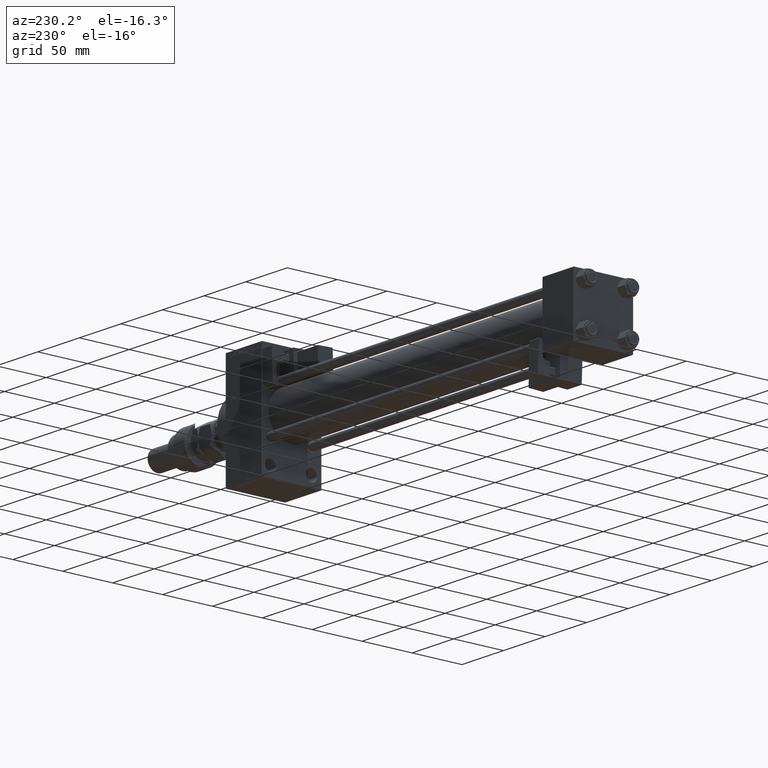
[diagram: clean part render]
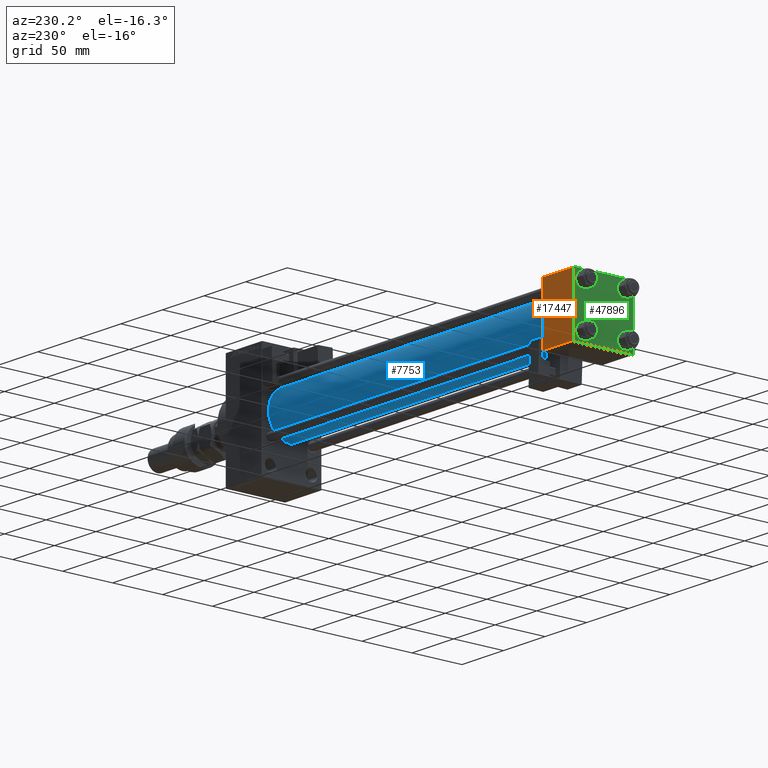
[diagram: same view with three faces highlighted in distinct colors, each labeled with its STEP entity id]
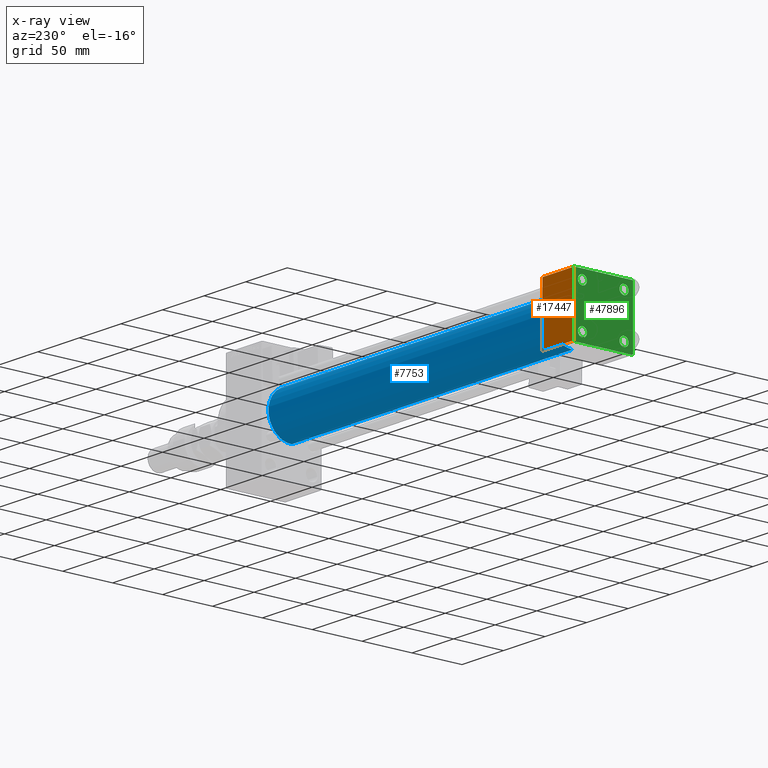
[diagram: x-ray of the same camera — body ghosted, the three highlighted faces saturated]
A machine part, auxiliary view with three faces highlighted in distinct colors.
The next image is the same camera in x-ray (body ghosted, the three faces saturated) — at least one of them is partly hidden behind the body in this view.
Their STEP definitions:

[orange] entity #17447 — the highlighted planar face has unit normal (0, 1, 0).
#1815 = DIRECTION ( 'NONE',  ( -1.000000000000000000, 0.000000000000000000, 0.000000000000000000 ) ) ;
#3280 = EDGE_CURVE ( 'NONE', #49891, #51180, #23770, .T. ) ;
#3715 = CARTESIAN_POINT ( 'NONE',  ( 37.00000000000000000, 29.99999999999999289, 30.00000000000000000 ) ) ;
#5031 = LINE ( 'NONE', #46462, #19819 ) ;
#7054 = CARTESIAN_POINT ( 'NONE',  ( 37.00000000000000000, 29.99999999999999289, -29.50000000000000000 ) ) ;
#11153 = DIRECTION ( 'NONE',  ( -0.000000000000000000, 1.000000000000000000, 0.000000000000000000 ) ) ;
#11425 = ORIENTED_EDGE ( 'NONE', *, *, #3280, .T. ) ;
#12215 = AXIS2_PLACEMENT_3D ( 'NONE', #3715, #11153, #44110 ) ;
#13327 = VERTEX_POINT ( 'NONE', #7054 ) ;
#15784 = CARTESIAN_POINT ( 'NONE',  ( 37.00000000000000000, 29.99999999999999289, 29.50000000000000000 ) ) ;
#17447 = ADVANCED_FACE ( 'NONE', ( #50767 ), #47297, .T. ) ;
#17725 = EDGE_CURVE ( 'NONE', #51180, #13327, #5031, .T. ) ;
#19819 = VECTOR ( 'NONE', #37433, 1000.000000000000000 ) ;
#23732 = VECTOR ( 'NONE', #32566, 1000.000000000000000 ) ;
#23770 = LINE ( 'NONE', #15784, #33833 ) ;
#28589 = ORIENTED_EDGE ( 'NONE', *, *, #45771, .F. ) ;
#28854 = CARTESIAN_POINT ( 'NONE',  ( 0.000000000000000000, 29.99999999999999289, 30.00000000000000000 ) ) ;
#31266 = CARTESIAN_POINT ( 'NONE',  ( 37.00000000000000000, 29.99999999999999289, -29.50000000000000000 ) ) ;
#32096 = EDGE_LOOP ( 'NONE', ( #50029, #44716, #28589, #11425 ) ) ;
#32566 = DIRECTION ( 'NONE',  ( 0.000000000000000000, 0.000000000000000000, -1.000000000000000000 ) ) ;
#33778 = EDGE_CURVE ( 'NONE', #13327, #45469, #51219, .T. ) ;
#33833 = VECTOR ( 'NONE', #47444, 1000.000000000000000 ) ;
#36258 = CARTESIAN_POINT ( 'NONE',  ( 0.000000000000000000, 29.99999999999999289, -29.50000000000000000 ) ) ;
#36365 = CARTESIAN_POINT ( 'NONE',  ( 0.000000000000000000, 29.99999999999999289, 29.50000000000000000 ) ) ;
#37433 = DIRECTION ( 'NONE',  ( 0.000000000000000000, 0.000000000000000000, -1.000000000000000000 ) ) ;
#44110 = DIRECTION ( 'NONE',  ( 0.000000000000000000, -0.000000000000000000, 1.000000000000000000 ) ) ;
#44716 = ORIENTED_EDGE ( 'NONE', *, *, #33778, .T. ) ;
#45469 = VERTEX_POINT ( 'NONE', #36258 ) ;
#45771 = EDGE_CURVE ( 'NONE', #49891, #45469, #48543, .T. ) ;
#46462 = CARTESIAN_POINT ( 'NONE',  ( 37.00000000000000000, 29.99999999999999289, 30.00000000000000000 ) ) ;
#47297 = PLANE ( 'NONE',  #12215 ) ;
#47444 = DIRECTION ( 'NONE',  ( 1.000000000000000000, 0.000000000000000000, 0.000000000000000000 ) ) ;
#48543 = LINE ( 'NONE', #28854, #23732 ) ;
#49891 = VERTEX_POINT ( 'NONE', #36365 ) ;
#50029 = ORIENTED_EDGE ( 'NONE', *, *, #17725, .T. ) ;
#50767 = FACE_OUTER_BOUND ( 'NONE', #32096, .T. ) ;
#51180 = VERTEX_POINT ( 'NONE', #51999 ) ;
#51219 = LINE ( 'NONE', #31266, #51770 ) ;
#51770 = VECTOR ( 'NONE', #1815, 1000.000000000000000 ) ;
#51999 = CARTESIAN_POINT ( 'NONE',  ( 37.00000000000000000, 29.99999999999999289, 29.50000000000000000 ) ) ;

[blue] entity #7753 — the highlighted cylindrical surface (edge-blend (fillet) strip) has radius 23 mm, axis along (-1, -0, -0).
#1258 = EDGE_CURVE ( 'NONE', #6333, #41746, #26091, .T. ) ;
#1429 = DIRECTION ( 'NONE',  ( -1.000000000000000000, -0.000000000000000000, -0.000000000000000000 ) ) ;
#3527 = EDGE_CURVE ( 'NONE', #10437, #6333, #25605, .T. ) ;
#4257 = CARTESIAN_POINT ( 'NONE',  ( 375.0000000000000000, -2.602085213965210642E-15, 23.00000000000000000 ) ) ;
#5091 = VERTEX_POINT ( 'NONE', #4257 ) ;
#5419 = LINE ( 'NONE', #6193, #39553 ) ;
#6193 = CARTESIAN_POINT ( 'NONE',  ( 375.0000000000000000, -2.602085213965210642E-15, 23.00000000000000000 ) ) ;
#6333 = VERTEX_POINT ( 'NONE', #44866 ) ;
#7753 = ADVANCED_FACE ( 'NONE', ( #15524 ), #52211, .T. ) ;
#8648 = EDGE_CURVE ( 'NONE', #10437, #5091, #42415, .T. ) ;
#10437 = VERTEX_POINT ( 'NONE', #39761 ) ;
#11868 = DIRECTION ( 'NONE',  ( 0.000000000000000000, 0.000000000000000000, 1.000000000000000000 ) ) ;
#12827 = DIRECTION ( 'NONE',  ( 1.000000000000000000, 0.000000000000000000, 0.000000000000000000 ) ) ;
#14349 = ORIENTED_EDGE ( 'NONE', *, *, #36117, .F. ) ;
#15524 = FACE_OUTER_BOUND ( 'NONE', #26662, .T. ) ;
#15831 = DIRECTION ( 'NONE',  ( 1.000000000000000000, -0.000000000000000000, 0.000000000000000000 ) ) ;
#17596 = ORIENTED_EDGE ( 'NONE', *, *, #3527, .T. ) ;
#17817 = AXIS2_PLACEMENT_3D ( 'NONE', #48719, #12827, #24776 ) ;
#20297 = DIRECTION ( 'NONE',  ( -1.000000000000000000, -0.000000000000000000, -0.000000000000000000 ) ) ;
#20989 = AXIS2_PLACEMENT_3D ( 'NONE', #36042, #15831, #11868 ) ;
#24776 = DIRECTION ( 'NONE',  ( 0.000000000000000000, 0.000000000000000000, -1.000000000000000000 ) ) ;
#25605 = LINE ( 'NONE', #41822, #34652 ) ;
#26091 = CIRCLE ( 'NONE', #20989, 23.00000000000000000 ) ;
#26662 = EDGE_LOOP ( 'NONE', ( #27742, #17596, #37896, #14349 ) ) ;
#27742 = ORIENTED_EDGE ( 'NONE', *, *, #8648, .F. ) ;
#27757 = DIRECTION ( 'NONE',  ( 0.000000000000000000, 0.000000000000000000, 1.000000000000000000 ) ) ;
#31351 = AXIS2_PLACEMENT_3D ( 'NONE', #31735, #20297, #27757 ) ;
#31735 = CARTESIAN_POINT ( 'NONE',  ( 375.0000000000000000, -2.602085213965210642E-15, 0.000000000000000000 ) ) ;
#34652 = VECTOR ( 'NONE', #1429, 1000.000000000000000 ) ;
#36042 = CARTESIAN_POINT ( 'NONE',  ( 36.99999999999997868, -2.602085213965210642E-15, 0.000000000000000000 ) ) ;
#36117 = EDGE_CURVE ( 'NONE', #5091, #41746, #5419, .T. ) ;
#37555 = DIRECTION ( 'NONE',  ( -1.000000000000000000, -0.000000000000000000, -0.000000000000000000 ) ) ;
#37896 = ORIENTED_EDGE ( 'NONE', *, *, #1258, .T. ) ;
#39553 = VECTOR ( 'NONE', #37555, 1000.000000000000000 ) ;
#39761 = CARTESIAN_POINT ( 'NONE',  ( 375.0000000000000000, 2.146024240737016609E-16, -23.00000000000000000 ) ) ;
#41746 = VERTEX_POINT ( 'NONE', #52169 ) ;
#41822 = CARTESIAN_POINT ( 'NONE',  ( 375.0000000000000000, 2.146024240737016609E-16, -23.00000000000000000 ) ) ;
#42415 = CIRCLE ( 'NONE', #17817, 23.00000000000000000 ) ;
#44866 = CARTESIAN_POINT ( 'NONE',  ( 36.99999999999997868, 2.146024240737016609E-16, -23.00000000000000000 ) ) ;
#48719 = CARTESIAN_POINT ( 'NONE',  ( 375.0000000000000000, -2.602085213965210642E-15, 0.000000000000000000 ) ) ;
#52169 = CARTESIAN_POINT ( 'NONE',  ( 36.99999999999997868, -2.602085213965210642E-15, 23.00000000000000000 ) ) ;
#52211 = CYLINDRICAL_SURFACE ( 'NONE', #31351, 23.00000000000000000 ) ;

[green] entity #47896 — the highlighted planar face has unit normal (-1, 0, 0).
#418 = DIRECTION ( 'NONE',  ( 1.000000000000000000, -0.000000000000000000, 0.000000000000000000 ) ) ;
#561 = CARTESIAN_POINT ( 'NONE',  ( 0.000000000000000000, 20.84999999999999787, 20.85000000000000142 ) ) ;
#636 = VERTEX_POINT ( 'NONE', #2762 ) ;
#946 = AXIS2_PLACEMENT_3D ( 'NONE', #40151, #20459, #3751 ) ;
#1863 = EDGE_CURVE ( 'NONE', #9135, #15608, #46480, .T. ) ;
#2193 = DIRECTION ( 'NONE',  ( 0.000000000000000000, 0.000000000000000000, 1.000000000000000000 ) ) ;
#2205 = CARTESIAN_POINT ( 'NONE',  ( 0.000000000000000000, 29.49999999999997868, -30.00000000000000000 ) ) ;
#2606 = LINE ( 'NONE', #47789, #23509 ) ;
#2617 = EDGE_CURVE ( 'NONE', #9074, #45902, #24448, .T. ) ;
#2762 = CARTESIAN_POINT ( 'NONE',  ( 0.000000000000000000, 29.49999999999999289, 30.00000000000000000 ) ) ;
#3401 = ORIENTED_EDGE ( 'NONE', *, *, #1863, .T. ) ;
#3751 = DIRECTION ( 'NONE',  ( 0.000000000000000000, 0.000000000000000000, 1.000000000000000000 ) ) ;
#4029 = AXIS2_PLACEMENT_3D ( 'NONE', #50655, #46674, #50918 ) ;
#5062 = DIRECTION ( 'NONE',  ( 1.000000000000000000, -0.000000000000000000, 0.000000000000000000 ) ) ;
#5161 = DIRECTION ( 'NONE',  ( 1.000000000000000000, -0.000000000000000000, 0.000000000000000000 ) ) ;
#5444 = VERTEX_POINT ( 'NONE', #50154 ) ;
#6290 = ORIENTED_EDGE ( 'NONE', *, *, #27703, .F. ) ;
#6493 = AXIS2_PLACEMENT_3D ( 'NONE', #28377, #44845, #8465 ) ;
#6819 = ORIENTED_EDGE ( 'NONE', *, *, #37660, .T. ) ;
#6904 = CIRCLE ( 'NONE', #946, 4.500000000000017764 ) ;
#7119 = DIRECTION ( 'NONE',  ( 0.000000000000000000, 0.7071067811865474617, -0.7071067811865474617 ) ) ;
#7330 = ORIENTED_EDGE ( 'NONE', *, *, #7465, .T. ) ;
#7465 = EDGE_CURVE ( 'NONE', #25760, #10061, #47228, .T. ) ;
#8333 = ORIENTED_EDGE ( 'NONE', *, *, #17304, .T. ) ;
#8465 = DIRECTION ( 'NONE',  ( 0.000000000000000000, 0.000000000000000000, 1.000000000000000000 ) ) ;
#9074 = VERTEX_POINT ( 'NONE', #9591 ) ;
#9135 = VERTEX_POINT ( 'NONE', #39474 ) ;
#9591 = CARTESIAN_POINT ( 'NONE',  ( 0.000000000000000000, -20.84999999999999076, 16.34999999999998721 ) ) ;
#10061 = VERTEX_POINT ( 'NONE', #43811 ) ;
#10717 = EDGE_CURVE ( 'NONE', #48157, #38126, #12073, .T. ) ;
#11070 = VECTOR ( 'NONE', #14408, 1000.000000000000114 ) ;
#11080 = LINE ( 'NONE', #39771, #50744 ) ;
#11235 = AXIS2_PLACEMENT_3D ( 'NONE', #20601, #418, #30085 ) ;
#11616 = FACE_BOUND ( 'NONE', #26525, .T. ) ;
#12073 = CIRCLE ( 'NONE', #11235, 4.500000000000017764 ) ;
#12999 = ORIENTED_EDGE ( 'NONE', *, *, #20776, .T. ) ;
#13514 = CARTESIAN_POINT ( 'NONE',  ( 0.000000000000000000, 20.84999999999999787, 25.35000000000001918 ) ) ;
#13642 = CARTESIAN_POINT ( 'NONE',  ( 0.000000000000000000, -20.84999999999999076, 20.85000000000000497 ) ) ;
#13717 = CARTESIAN_POINT ( 'NONE',  ( 0.000000000000000000, 20.84999999999999787, -25.35000000000001918 ) ) ;
#14117 = VECTOR ( 'NONE', #34645, 1000.000000000000000 ) ;
#14276 = DIRECTION ( 'NONE',  ( -0.000000000000000000, 0.7071067811865474617, 0.7071067811865474617 ) ) ;
#14408 = DIRECTION ( 'NONE',  ( 0.000000000000000000, -0.7071067811865474617, 0.7071067811865474617 ) ) ;
#15105 = ORIENTED_EDGE ( 'NONE', *, *, #40341, .T. ) ;
#15608 = VERTEX_POINT ( 'NONE', #25657 ) ;
#15965 = ORIENTED_EDGE ( 'NONE', *, *, #45771, .T. ) ;
#16127 = CARTESIAN_POINT ( 'NONE',  ( 0.000000000000000000, 0.000000000000000000, 0.000000000000000000 ) ) ;
#16366 = VERTEX_POINT ( 'NONE', #13514 ) ;
#17022 = AXIS2_PLACEMENT_3D ( 'NONE', #16127, #27824, #48303 ) ;
#17304 = EDGE_CURVE ( 'NONE', #16366, #5444, #30038, .T. ) ;
#18167 = LINE ( 'NONE', #25639, #14117 ) ;
#19041 = VERTEX_POINT ( 'NONE', #19511 ) ;
#19511 = CARTESIAN_POINT ( 'NONE',  ( 0.000000000000000000, -30.00000000000000000, -29.50000000000001776 ) ) ;
#19568 = FACE_BOUND ( 'NONE', #28949, .T. ) ;
#20452 = CARTESIAN_POINT ( 'NONE',  ( 0.000000000000000000, -20.84999999999999076, -20.85000000000000497 ) ) ;
#20459 = DIRECTION ( 'NONE',  ( 1.000000000000000000, -0.000000000000000000, 0.000000000000000000 ) ) ;
#20601 = CARTESIAN_POINT ( 'NONE',  ( 0.000000000000000000, 20.84999999999999787, -20.85000000000000142 ) ) ;
#20708 = DIRECTION ( 'NONE',  ( 0.000000000000000000, 0.000000000000000000, 1.000000000000000000 ) ) ;
#20776 = EDGE_CURVE ( 'NONE', #30730, #41832, #26666, .T. ) ;
#20830 = CARTESIAN_POINT ( 'NONE',  ( 0.000000000000000000, 29.99999999999999289, 30.00000000000000000 ) ) ;
#21623 = LINE ( 'NONE', #20830, #36260 ) ;
#21913 = AXIS2_PLACEMENT_3D ( 'NONE', #13642, #5161, #2193 ) ;
#22430 = ORIENTED_EDGE ( 'NONE', *, *, #38735, .T. ) ;
#22625 = DIRECTION ( 'NONE',  ( 0.000000000000000000, 0.000000000000000000, 1.000000000000000000 ) ) ;
#23509 = VECTOR ( 'NONE', #46743, 999.9999999999998863 ) ;
#23732 = VECTOR ( 'NONE', #32566, 1000.000000000000000 ) ;
#23828 = ORIENTED_EDGE ( 'NONE', *, *, #2617, .T. ) ;
#23833 = FACE_BOUND ( 'NONE', #40437, .T. ) ;
#24448 = CIRCLE ( 'NONE', #21913, 4.500000000000017764 ) ;
#24714 = AXIS2_PLACEMENT_3D ( 'NONE', #20452, #5062, #20708 ) ;
#24737 = DIRECTION ( 'NONE',  ( 1.000000000000000000, -0.000000000000000000, 0.000000000000000000 ) ) ;
#25155 = ORIENTED_EDGE ( 'NONE', *, *, #48726, .T. ) ;
#25639 = CARTESIAN_POINT ( 'NONE',  ( 0.000000000000000000, -30.00000000000000000, 29.99999999999999289 ) ) ;
#25657 = CARTESIAN_POINT ( 'NONE',  ( 0.000000000000000000, -20.84999999999999076, -16.34999999999998721 ) ) ;
#25760 = VERTEX_POINT ( 'NONE', #42363 ) ;
#26525 = EDGE_LOOP ( 'NONE', ( #25155, #3401 ) ) ;
#26666 = LINE ( 'NONE', #46115, #27607 ) ;
#26800 = CIRCLE ( 'NONE', #6493, 4.500000000000017764 ) ;
#27279 = ORIENTED_EDGE ( 'NONE', *, *, #10717, .T. ) ;
#27607 = VECTOR ( 'NONE', #33872, 1000.000000000000000 ) ;
#27703 = EDGE_CURVE ( 'NONE', #25760, #19041, #18167, .T. ) ;
#27824 = DIRECTION ( 'NONE',  ( -1.000000000000000000, 0.000000000000000000, -0.000000000000000000 ) ) ;
#28170 = EDGE_CURVE ( 'NONE', #636, #10061, #21623, .T. ) ;
#28315 = CARTESIAN_POINT ( 'NONE',  ( 0.000000000000000000, 20.84999999999999787, -16.34999999999998366 ) ) ;
#28377 = CARTESIAN_POINT ( 'NONE',  ( 0.000000000000000000, 20.84999999999999787, 20.85000000000000142 ) ) ;
#28854 = CARTESIAN_POINT ( 'NONE',  ( 0.000000000000000000, 29.99999999999999289, 30.00000000000000000 ) ) ;
#28949 = EDGE_LOOP ( 'NONE', ( #8333, #22430 ) ) ;
#28997 = DIRECTION ( 'NONE',  ( 0.000000000000000000, 0.000000000000000000, 1.000000000000000000 ) ) ;
#29206 = EDGE_CURVE ( 'NONE', #636, #49891, #11080, .T. ) ;
#30038 = CIRCLE ( 'NONE', #47850, 4.500000000000017764 ) ;
#30085 = DIRECTION ( 'NONE',  ( 0.000000000000000000, 0.000000000000000000, 1.000000000000000000 ) ) ;
#30609 = CARTESIAN_POINT ( 'NONE',  ( 0.000000000000000000, -20.84999999999999076, -20.85000000000000497 ) ) ;
#30730 = VERTEX_POINT ( 'NONE', #2205 ) ;
#32438 = ORIENTED_EDGE ( 'NONE', *, *, #51655, .T. ) ;
#32566 = DIRECTION ( 'NONE',  ( 0.000000000000000000, 0.000000000000000000, -1.000000000000000000 ) ) ;
#33075 = DIRECTION ( 'NONE',  ( 0.000000000000000000, -1.000000000000000000, -1.156482317317871725E-16 ) ) ;
#33872 = DIRECTION ( 'NONE',  ( 0.000000000000000000, -1.000000000000000000, -1.156482317317871725E-16 ) ) ;
#34116 = ORIENTED_EDGE ( 'NONE', *, *, #47100, .T. ) ;
#34645 = DIRECTION ( 'NONE',  ( 0.000000000000000000, 0.000000000000000000, -1.000000000000000000 ) ) ;
#35533 = FACE_OUTER_BOUND ( 'NONE', #52148, .T. ) ;
#36258 = CARTESIAN_POINT ( 'NONE',  ( 0.000000000000000000, 29.99999999999999289, -29.50000000000000000 ) ) ;
#36260 = VECTOR ( 'NONE', #33075, 1000.000000000000000 ) ;
#36318 = ORIENTED_EDGE ( 'NONE', *, *, #29206, .T. ) ;
#36365 = CARTESIAN_POINT ( 'NONE',  ( 0.000000000000000000, 29.99999999999999289, 29.50000000000000000 ) ) ;
#37332 = ORIENTED_EDGE ( 'NONE', *, *, #28170, .F. ) ;
#37350 = CARTESIAN_POINT ( 'NONE',  ( 0.000000000000000000, -20.84999999999999076, 25.35000000000002274 ) ) ;
#37660 = EDGE_CURVE ( 'NONE', #45469, #30730, #2606, .T. ) ;
#38126 = VERTEX_POINT ( 'NONE', #28315 ) ;
#38735 = EDGE_CURVE ( 'NONE', #5444, #16366, #26800, .T. ) ;
#39474 = CARTESIAN_POINT ( 'NONE',  ( 0.000000000000000000, -20.84999999999999076, -25.35000000000002274 ) ) ;
#39771 = CARTESIAN_POINT ( 'NONE',  ( 0.000000000000000000, 29.74999999999999645, 29.74999999999999645 ) ) ;
#40151 = CARTESIAN_POINT ( 'NONE',  ( 0.000000000000000000, -20.84999999999999076, 20.85000000000000497 ) ) ;
#40341 = EDGE_CURVE ( 'NONE', #38126, #48157, #51510, .T. ) ;
#40393 = EDGE_LOOP ( 'NONE', ( #32438, #23828 ) ) ;
#40437 = EDGE_LOOP ( 'NONE', ( #15105, #27279 ) ) ;
#41832 = VERTEX_POINT ( 'NONE', #50027 ) ;
#42222 = AXIS2_PLACEMENT_3D ( 'NONE', #30609, #42833, #22625 ) ;
#42363 = CARTESIAN_POINT ( 'NONE',  ( 0.000000000000000000, -30.00000000000000000, 29.49999999999999289 ) ) ;
#42587 = CARTESIAN_POINT ( 'NONE',  ( 0.000000000000000000, -29.75000000000001066, -29.75000000000001066 ) ) ;
#42833 = DIRECTION ( 'NONE',  ( 1.000000000000000000, -0.000000000000000000, 0.000000000000000000 ) ) ;
#43811 = CARTESIAN_POINT ( 'NONE',  ( 0.000000000000000000, -29.49999999999998579, 29.99999999999999289 ) ) ;
#44845 = DIRECTION ( 'NONE',  ( 1.000000000000000000, -0.000000000000000000, 0.000000000000000000 ) ) ;
#45469 = VERTEX_POINT ( 'NONE', #36258 ) ;
#45771 = EDGE_CURVE ( 'NONE', #49891, #45469, #48543, .T. ) ;
#45902 = VERTEX_POINT ( 'NONE', #37350 ) ;
#46115 = CARTESIAN_POINT ( 'NONE',  ( 0.000000000000000000, 29.99999999999999289, -30.00000000000000000 ) ) ;
#46480 = CIRCLE ( 'NONE', #42222, 4.500000000000017764 ) ;
#46674 = DIRECTION ( 'NONE',  ( 1.000000000000000000, -0.000000000000000000, 0.000000000000000000 ) ) ;
#46743 = DIRECTION ( 'NONE',  ( -0.000000000000000000, -0.7071067811865574537, -0.7071067811865376918 ) ) ;
#47100 = EDGE_CURVE ( 'NONE', #41832, #19041, #51088, .T. ) ;
#47228 = LINE ( 'NONE', #50698, #49171 ) ;
#47789 = CARTESIAN_POINT ( 'NONE',  ( 0.000000000000000000, 29.74999999999957723, -29.75000000000040501 ) ) ;
#47850 = AXIS2_PLACEMENT_3D ( 'NONE', #561, #24737, #28997 ) ;
#47896 = ADVANCED_FACE ( 'NONE', ( #52554, #11616, #23833, #19568, #35533 ), #51753, .T. ) ;
#48157 = VERTEX_POINT ( 'NONE', #13717 ) ;
#48303 = DIRECTION ( 'NONE',  ( -0.000000000000000000, 0.000000000000000000, 1.000000000000000000 ) ) ;
#48543 = LINE ( 'NONE', #28854, #23732 ) ;
#48726 = EDGE_CURVE ( 'NONE', #15608, #9135, #49329, .T. ) ;
#49171 = VECTOR ( 'NONE', #14276, 1000.000000000000114 ) ;
#49329 = CIRCLE ( 'NONE', #24714, 4.500000000000017764 ) ;
#49891 = VERTEX_POINT ( 'NONE', #36365 ) ;
#50027 = CARTESIAN_POINT ( 'NONE',  ( 0.000000000000000000, -29.50000000000000000, -30.00000000000000711 ) ) ;
#50154 = CARTESIAN_POINT ( 'NONE',  ( 0.000000000000000000, 20.84999999999999787, 16.34999999999998366 ) ) ;
#50655 = CARTESIAN_POINT ( 'NONE',  ( 0.000000000000000000, 20.84999999999999787, -20.85000000000000142 ) ) ;
#50698 = CARTESIAN_POINT ( 'NONE',  ( -0.000000000000000000, -29.74999999999999645, 29.74999999999999645 ) ) ;
#50744 = VECTOR ( 'NONE', #7119, 1000.000000000000114 ) ;
#50918 = DIRECTION ( 'NONE',  ( 0.000000000000000000, 0.000000000000000000, 1.000000000000000000 ) ) ;
#51088 = LINE ( 'NONE', #42587, #11070 ) ;
#51510 = CIRCLE ( 'NONE', #4029, 4.500000000000017764 ) ;
#51655 = EDGE_CURVE ( 'NONE', #45902, #9074, #6904, .T. ) ;
#51753 = PLANE ( 'NONE',  #17022 ) ;
#52148 = EDGE_LOOP ( 'NONE', ( #15965, #6819, #12999, #34116, #6290, #7330, #37332, #36318 ) ) ;
#52554 = FACE_BOUND ( 'NONE', #40393, .T. ) ;